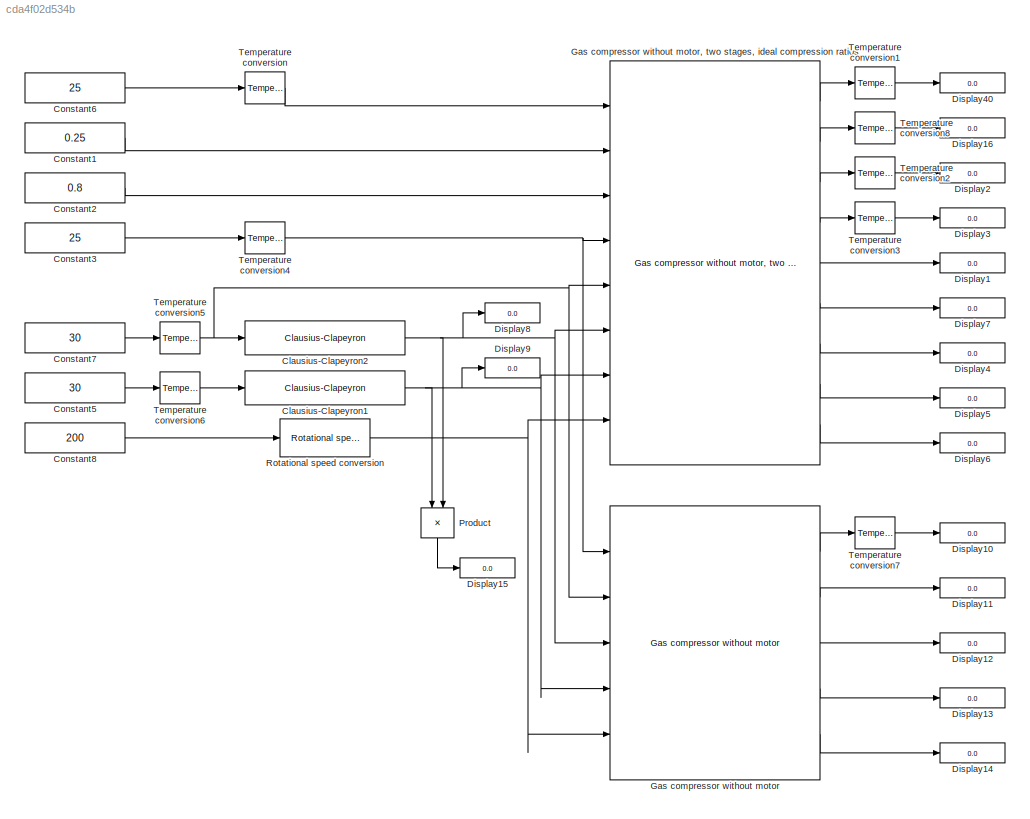
MODEL slx_cda4f02d534b
KIND model
CONFIG AbsTol = auto
CONFIG EnableMultiTasking = off
CONFIG FixedStep = auto
CONFIG MaxStep = 0.2
CONFIG MinStep = auto
CONFIG RelTol = 1e-3
CONFIG SampleTimeConstraint = Unconstrained
CONFIG Solver = ode23tb
CONFIG SolverName = ode23tb
CONFIG StartTime = 0.0
CONFIG StopTime = 0
BLOCK [Reference] Clausius-Clapeyron1  REF=thermochemical/Thermodynamic fluid properties/Clausius-Clapeyron  (lib defined in slx_f9e0643dc704)
  Ports = [1, 1]
  SourceBlock = thermochemical/Thermodynamic fluid properties/Clausius-Clapeyron
  SourceProductName = @ Thermochemical
  SourceType = clausius_clapeyron
BLOCK [Reference] Clausius-Clapeyron2  REF=thermochemical/Thermodynamic fluid properties/Clausius-Clapeyron  (lib defined in slx_f9e0643dc704)
  Ports = [1, 1]
  SourceBlock = thermochemical/Thermodynamic fluid properties/Clausius-Clapeyron
  SourceProductName = @ Thermochemical
  SourceType = clausius_clapeyron
BLOCK [Constant] Constant1
  Value = 0.25
BLOCK [Constant] Constant2
  Value = 0.8
BLOCK [Constant] Constant3
  Value = 25
BLOCK [Constant] Constant5
  Value = 30
BLOCK [Constant] Constant6
  Value = 25
BLOCK [Constant] Constant7
  Value = 30
BLOCK [Constant] Constant8
  Value = 200
BLOCK [Display] Display1
  Decimation = 1
  Ports = [1]
BLOCK [Display] Display10
  Decimation = 1
  Ports = [1]
BLOCK [Display] Display11
  Decimation = 1
  Ports = [1]
BLOCK [Display] Display12
  Decimation = 1
  Ports = [1]
BLOCK [Display] Display13
  Decimation = 1
  Ports = [1]
BLOCK [Display] Display14
  Decimation = 1
  Ports = [1]
BLOCK [Display] Display15
  Decimation = 1
  Ports = [1]
BLOCK [Display] Display16
  Decimation = 1
  Ports = [1]
BLOCK [Display] Display2
  Decimation = 1
  Ports = [1]
BLOCK [Display] Display3
  Decimation = 1
  Ports = [1]
BLOCK [Display] Display4
  Decimation = 1
  Ports = [1]
BLOCK [Display] Display40
  Decimation = 1
  Ports = [1]
BLOCK [Display] Display5
  Decimation = 1
  Ports = [1]
BLOCK [Display] Display6
  Decimation = 1
  Ports = [1]
BLOCK [Display] Display7
  Decimation = 1
  Ports = [1]
BLOCK [Display] Display8
  Decimation = 1
  Ports = [1]
BLOCK [Display] Display9
  Decimation = 1
  Ports = [1]
BLOCK [Reference] Gas compressor without motor  REF=thermochemical/Compression/Gas compressor without motor  (lib defined in slx_f9e0643dc704)
  Ports = [5, 5]
  SourceBlock = thermochemical/Compression/Gas compressor without motor
  SourceProductName = @ Thermochemical
BLOCK [Reference] Gas compressor without motor, two stages, ideal compression ratios  REF=thermochemical/Compression/Gas compressor without motor, two stages,  (lib defined in slx_f9e0643dc704)
ideal compression ratios
  Ports = [8, 9]
  SourceBlock = thermochemical/Compression/Gas compressor without motor, two stages,\nideal compression ratios
  SourceProductName = @ Thermochemical
BLOCK [Product] Product
  InputSameDT = off
  Inputs = */
  OutDataTypeStr = Inherit: Inherit via internal rule
  Ports = [2, 1]
  RndMeth = Floor
  SaturateOnIntegerOverflow = off
BLOCK [Reference] Rotational speed conversion  REF=thermochemical/Conversions/Rotational speed  (lib defined in slx_f9e0643dc704)
conversion
  Ports = [1, 1]
  SourceBlock = thermochemical/Conversions/Rotational speed\nconversion
  SourceProductName = @ Thermochemical
  SourceType = convert_pressure
BLOCK [Reference] Temperature conversion  REF=thermochemical/Conversions/Temperature  (lib defined in slx_f9e0643dc704)
conversion
  Ports = [1, 1]
  SourceBlock = thermochemical/Conversions/Temperature\nconversion
  SourceProductName = @ Thermochemical
  SourceType = convert_temperature
BLOCK [Reference] Temperature conversion1  REF=thermochemical/Conversions/Temperature  (lib defined in slx_f9e0643dc704)
conversion
  Ports = [1, 1]
  SourceBlock = thermochemical/Conversions/Temperature\nconversion
  SourceProductName = @ Thermochemical
  SourceType = convert_temperature
BLOCK [Reference] Temperature conversion2  REF=thermochemical/Conversions/Temperature  (lib defined in slx_f9e0643dc704)
conversion
  Ports = [1, 1]
  SourceBlock = thermochemical/Conversions/Temperature\nconversion
  SourceProductName = @ Thermochemical
  SourceType = convert_temperature
BLOCK [Reference] Temperature conversion3  REF=thermochemical/Conversions/Temperature  (lib defined in slx_f9e0643dc704)
conversion
  Ports = [1, 1]
  SourceBlock = thermochemical/Conversions/Temperature\nconversion
  SourceProductName = @ Thermochemical
  SourceType = convert_temperature
BLOCK [Reference] Temperature conversion4  REF=thermochemical/Conversions/Temperature  (lib defined in slx_f9e0643dc704)
conversion
  Ports = [1, 1]
  SourceBlock = thermochemical/Conversions/Temperature\nconversion
  SourceProductName = @ Thermochemical
  SourceType = convert_temperature
BLOCK [Reference] Temperature conversion5  REF=thermochemical/Conversions/Temperature  (lib defined in slx_f9e0643dc704)
conversion
  Ports = [1, 1]
  SourceBlock = thermochemical/Conversions/Temperature\nconversion
  SourceProductName = @ Thermochemical
  SourceType = convert_temperature
BLOCK [Reference] Temperature conversion6  REF=thermochemical/Conversions/Temperature  (lib defined in slx_f9e0643dc704)
conversion
  Ports = [1, 1]
  SourceBlock = thermochemical/Conversions/Temperature\nconversion
  SourceProductName = @ Thermochemical
  SourceType = convert_temperature
BLOCK [Reference] Temperature conversion7  REF=thermochemical/Conversions/Temperature  (lib defined in slx_f9e0643dc704)
conversion
  Ports = [1, 1]
  SourceBlock = thermochemical/Conversions/Temperature\nconversion
  SourceProductName = @ Thermochemical
  SourceType = convert_temperature
BLOCK [Reference] Temperature conversion8  REF=thermochemical/Conversions/Temperature  (lib defined in slx_f9e0643dc704)
conversion
  Ports = [1, 1]
  SourceBlock = thermochemical/Conversions/Temperature\nconversion
  SourceProductName = @ Thermochemical
  SourceType = convert_temperature
NET Clausius-Clapeyron1:1 -> Display9:1, Gas compressor without motor, two stages, ideal compression ratios:7, Gas compressor without motor:4, Product:1
NET Clausius-Clapeyron2:1 -> Display8:1, Gas compressor without motor, two stages, ideal compression ratios:6, Gas compressor without motor:3, Product:2
LINE Constant1:1 -> Gas compressor without motor, two stages, ideal compression ratios:2
LINE Constant2:1 -> Gas compressor without motor, two stages, ideal compression ratios:3
LINE Constant3:1 -> Temperature conversion4:1
LINE Constant5:1 -> Temperature conversion6:1
LINE Constant6:1 -> Temperature conversion:1
LINE Constant7:1 -> Temperature conversion5:1
LINE Constant8:1 -> Rotational speed conversion:1
LINE Gas compressor without motor, two stages, ideal compression ratios:1 -> Temperature conversion1:1
LINE Gas compressor without motor, two stages, ideal compression ratios:2 -> Temperature conversion8:1
LINE Gas compressor without motor, two stages, ideal compression ratios:3 -> Temperature conversion2:1
LINE Gas compressor without motor, two stages, ideal compression ratios:4 -> Temperature conversion3:1
LINE Gas compressor without motor, two stages, ideal compression ratios:5 -> Display1:1
LINE Gas compressor without motor, two stages, ideal compression ratios:6 -> Display7:1
LINE Gas compressor without motor, two stages, ideal compression ratios:7 -> Display4:1
LINE Gas compressor without motor, two stages, ideal compression ratios:8 -> Display5:1
LINE Gas compressor without motor, two stages, ideal compression ratios:9 -> Display6:1
LINE Gas compressor without motor:1 -> Temperature conversion7:1
LINE Gas compressor without motor:2 -> Display11:1
LINE Gas compressor without motor:3 -> Display12:1
LINE Gas compressor without motor:4 -> Display13:1
LINE Gas compressor without motor:5 -> Display14:1
LINE Product:1 -> Display15:1
NET Rotational speed conversion:1 -> Gas compressor without motor, two stages, ideal compression ratios:8, Gas compressor without motor:5
LINE Temperature conversion1:1 -> Display40:1
LINE Temperature conversion2:1 -> Display2:1
LINE Temperature conversion3:1 -> Display3:1
NET Temperature conversion4:1 -> Gas compressor without motor, two stages, ideal compression ratios:4, Gas compressor without motor:1
NET Temperature conversion5:1 -> Clausius-Clapeyron2:1, Gas compressor without motor, two stages, ideal compression ratios:5, Gas compressor without motor:2
LINE Temperature conversion6:1 -> Clausius-Clapeyron1:1
LINE Temperature conversion7:1 -> Display10:1
LINE Temperature conversion8:1 -> Display16:1
LINE Temperature conversion:1 -> Gas compressor without motor, two stages, ideal compression ratios:1
note: NET lines group one-source signal fan-out (src -> all destinations, sorted); 1:1 wires keep LINE
